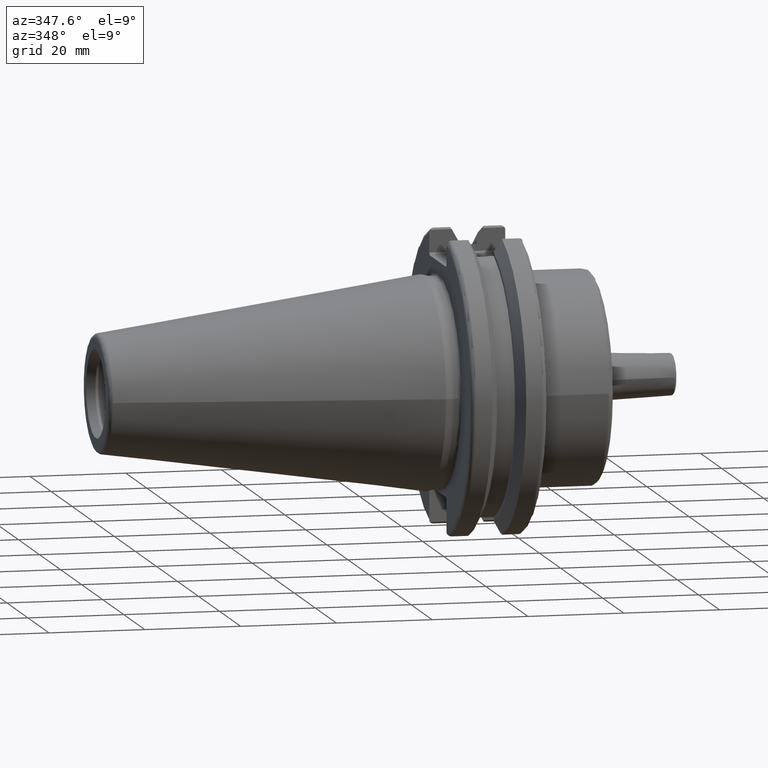
[diagram: clean part render]
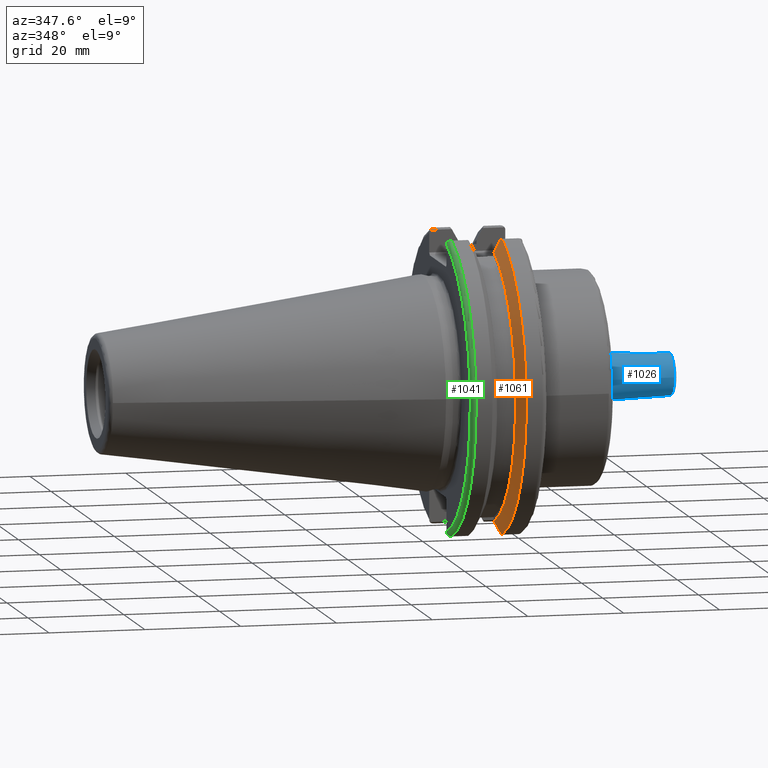
[diagram: same view with three faces highlighted in distinct colors, each labeled with its STEP entity id]
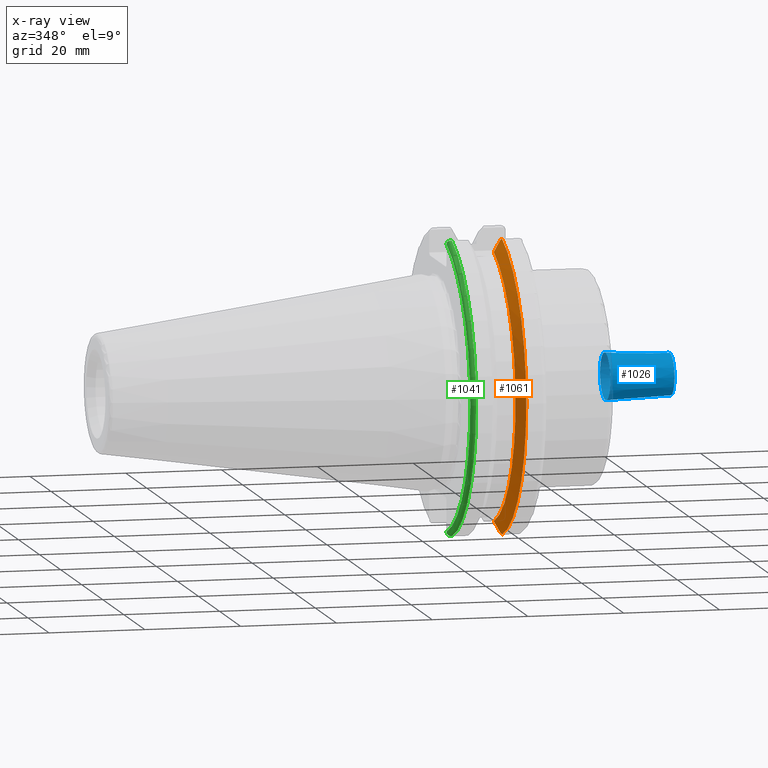
[diagram: x-ray of the same camera — body ghosted, the three highlighted faces saturated]
A machine part, auxiliary view with three faces highlighted in distinct colors.
The next image is the same camera in x-ray (body ghosted, the three faces saturated) — at least one of them is partly hidden behind the body in this view.
Their STEP definitions:

[orange] entity #1061 — the highlighted conical surface has half-angle 60 deg.
#19=(
BOUNDED_CURVE()
B_SPLINE_CURVE(2,(#1778,#1779,#1780),.UNSPECIFIED.,.F.,.F.)
B_SPLINE_CURVE_WITH_KNOTS((3,3),(0.0550586467388173,0.33160778953585),
 .UNSPECIFIED.)
CURVE()
GEOMETRIC_REPRESENTATION_ITEM()
RATIONAL_B_SPLINE_CURVE((1.00031614444917,1.00095203903631,1.))
REPRESENTATION_ITEM('')
);
#20=(
BOUNDED_CURVE()
B_SPLINE_CURVE(2,(#1786,#1787,#1788),.UNSPECIFIED.,.F.,.F.)
B_SPLINE_CURVE_WITH_KNOTS((3,3),(0.,0.276549142796619),.UNSPECIFIED.)
CURVE()
GEOMETRIC_REPRESENTATION_ITEM()
RATIONAL_B_SPLINE_CURVE((1.,1.00095203903827,1.00031614444983))
REPRESENTATION_ITEM('')
);
#27=(
BOUNDED_CURVE()
B_SPLINE_CURVE(2,(#1921,#1922,#1923),.UNSPECIFIED.,.F.,.F.)
B_SPLINE_CURVE_WITH_KNOTS((3,3),(0.,0.0639048713676077),.UNSPECIFIED.)
CURVE()
GEOMETRIC_REPRESENTATION_ITEM()
RATIONAL_B_SPLINE_CURVE((1.,1.00028444218288,1.00047644010581))
REPRESENTATION_ITEM('')
);
#28=(
BOUNDED_CURVE()
B_SPLINE_CURVE(2,(#1937,#1938,#1939),.UNSPECIFIED.,.F.,.F.)
B_SPLINE_CURVE_WITH_KNOTS((3,3),(0.32935353363123,0.393258405001023),
 .UNSPECIFIED.)
CURVE()
GEOMETRIC_REPRESENTATION_ITEM()
RATIONAL_B_SPLINE_CURVE((1.00047644010596,1.00028444218297,1.))
REPRESENTATION_ITEM('')
);
#35=CONICAL_SURFACE('',#1188,30.3546886482472,1.0471975511966);
#269=FACE_OUTER_BOUND('',#333,.T.);
#333=EDGE_LOOP('',(#927,#928,#929,#930,#931,#932));
#412=CIRCLE('',#1182,31.75);
#415=CIRCLE('',#1189,28.9593772964944);
#495=VERTEX_POINT('',#1775);
#496=VERTEX_POINT('',#1777);
#497=VERTEX_POINT('',#1783);
#498=VERTEX_POINT('',#1785);
#523=VERTEX_POINT('',#1919);
#524=VERTEX_POINT('',#1925);
#619=EDGE_CURVE('',#496,#495,#19,.T.);
#622=EDGE_CURVE('',#498,#497,#20,.T.);
#664=EDGE_CURVE('',#523,#497,#27,.T.);
#666=EDGE_CURVE('',#524,#523,#412,.T.);
#671=EDGE_CURVE('',#496,#524,#28,.T.);
#672=EDGE_CURVE('',#495,#498,#415,.T.);
#927=ORIENTED_EDGE('',*,*,#664,.F.);
#928=ORIENTED_EDGE('',*,*,#666,.F.);
#929=ORIENTED_EDGE('',*,*,#671,.F.);
#930=ORIENTED_EDGE('',*,*,#619,.T.);
#931=ORIENTED_EDGE('',*,*,#672,.T.);
#932=ORIENTED_EDGE('',*,*,#622,.T.);
#1061=ADVANCED_FACE('',(#269),#35,.T.);
#1182=AXIS2_PLACEMENT_3D('',#1927,#1442,#1443);
#1188=AXIS2_PLACEMENT_3D('',#1940,#1456,#1457);
#1189=AXIS2_PLACEMENT_3D('',#1941,#1458,#1459);
#1442=DIRECTION('center_axis',(1.,0.,0.));
#1443=DIRECTION('ref_axis',(0.,0.,-1.));
#1456=DIRECTION('center_axis',(1.,0.,0.));
#1457=DIRECTION('ref_axis',(0.,-1.,-1.22464679914735E-16));
#1458=DIRECTION('center_axis',(1.,0.,0.));
#1459=DIRECTION('ref_axis',(0.,0.,-1.));
#1775=CARTESIAN_POINT('',(13.042,-8.19,27.7771386827498));
#1777=CARTESIAN_POINT('',(14.3744146964874,-8.19,30.1755016258903));
#1778=CARTESIAN_POINT('Ctrl Pts',(14.3744146964874,-8.19,30.1755016258903));
#1779=CARTESIAN_POINT('Ctrl Pts',(13.6806364384668,-8.19,28.9303689539537));
#1780=CARTESIAN_POINT('Ctrl Pts',(13.042,-8.19,27.7771386827498));
#1783=CARTESIAN_POINT('',(14.3744146964874,-8.19,-30.1755016258903));
#1785=CARTESIAN_POINT('',(13.042,-8.19,-27.7771386827498));
#1786=CARTESIAN_POINT('Ctrl Pts',(13.042,-8.19,-27.7771386827498));
#1787=CARTESIAN_POINT('Ctrl Pts',(13.6806364384734,-8.19,-28.9303689539657));
#1788=CARTESIAN_POINT('Ctrl Pts',(14.3744146964874,-8.19,-30.1755016258903));
#1919=CARTESIAN_POINT('',(14.6531667690756,-8.67204822802685,-30.5427254764662));
#1921=CARTESIAN_POINT('Ctrl Pts',(14.6531667690756,-8.67204822802687,-30.5427254764662));
#1922=CARTESIAN_POINT('Ctrl Pts',(14.5121085187837,-8.42917748262646,-30.357706789263));
#1923=CARTESIAN_POINT('Ctrl Pts',(14.3744146964874,-8.19,-30.1755016258903));
#1925=CARTESIAN_POINT('',(14.6531667690756,-8.67204822802685,30.5427254764662));
#1927=CARTESIAN_POINT('Origin',(14.6531667690756,0.,0.));
#1937=CARTESIAN_POINT('Ctrl Pts',(14.3744146964874,-8.19,30.1755016258903));
#1938=CARTESIAN_POINT('Ctrl Pts',(14.5121085187884,-8.42917748263461,30.3577067892692));
#1939=CARTESIAN_POINT('Ctrl Pts',(14.6531667690756,-8.67204822802686,30.5427254764662));
#1940=CARTESIAN_POINT('Origin',(13.8475833845378,0.,0.));
#1941=CARTESIAN_POINT('Origin',(13.042,0.,0.));

[blue] entity #1026 — the highlighted conical surface has half-angle 2.207 deg.
#32=CONICAL_SURFACE('',#1124,4.61645022377,0.0385259092163323);
#78=LINE('',#1577,#148);
#148=VECTOR('',#1270,4.61645022377);
#234=FACE_OUTER_BOUND('',#296,.T.);
#296=EDGE_LOOP('',(#725,#726,#727,#728,#729));
#385=CIRCLE('',#1123,4.877);
#386=CIRCLE('',#1125,4.35590044754001);
#387=CIRCLE('',#1126,4.35590044754001);
#439=VERTEX_POINT('',#1570);
#440=VERTEX_POINT('',#1574);
#441=VERTEX_POINT('',#1575);
#549=EDGE_CURVE('',#439,#439,#385,.T.);
#551=EDGE_CURVE('',#440,#441,#386,.T.);
#552=EDGE_CURVE('',#440,#439,#78,.T.);
#553=EDGE_CURVE('',#441,#440,#387,.T.);
#725=ORIENTED_EDGE('',*,*,#551,.F.);
#726=ORIENTED_EDGE('',*,*,#552,.T.);
#727=ORIENTED_EDGE('',*,*,#549,.T.);
#728=ORIENTED_EDGE('',*,*,#552,.F.);
#729=ORIENTED_EDGE('',*,*,#553,.F.);
#1026=ADVANCED_FACE('',(#234),#32,.T.);
#1123=AXIS2_PLACEMENT_3D('',#1571,#1263,#1264);
#1124=AXIS2_PLACEMENT_3D('',#1573,#1266,#1267);
#1125=AXIS2_PLACEMENT_3D('',#1576,#1268,#1269);
#1126=AXIS2_PLACEMENT_3D('',#1578,#1271,#1272);
#1263=DIRECTION('center_axis',(1.,0.,0.));
#1264=DIRECTION('ref_axis',(0.,0.,-1.));
#1266=DIRECTION('center_axis',(-1.,0.,0.));
#1267=DIRECTION('ref_axis',(0.,1.,0.));
#1268=DIRECTION('center_axis',(1.,0.,0.));
#1269=DIRECTION('ref_axis',(0.,0.,-1.));
#1270=DIRECTION('',(-0.999257968946038,-0.0385163796045143,-4.71689609974128E-18));
#1271=DIRECTION('center_axis',(1.,0.,0.));
#1272=DIRECTION('ref_axis',(0.,0.,-1.));
#1570=CARTESIAN_POINT('',(38.1,-4.877,-5.97260243944164E-16));
#1571=CARTESIAN_POINT('Origin',(38.1,0.,0.));
#1573=CARTESIAN_POINT('Origin',(44.8596290949011,0.,0.));
#1574=CARTESIAN_POINT('',(51.6192581898023,-4.35590044754001,-5.33443954048439E-16));
#1575=CARTESIAN_POINT('',(51.6192581898023,-5.33443954048439E-16,4.35590044754001));
#1576=CARTESIAN_POINT('Origin',(51.6192581898023,0.,0.));
#1577=CARTESIAN_POINT('',(44.8596290949011,-4.61645022377,-5.65352098996302E-16));
#1578=CARTESIAN_POINT('Origin',(51.6192581898023,0.,0.));

[green] entity #1041 — the highlighted toroidal blend (fillet) surface has major radius 30.75 mm and minor (blend) radius 1 mm.
#249=FACE_OUTER_BOUND('',#312,.T.);
#312=EDGE_LOOP('',(#832,#833,#834,#835,#836,#837));
#365=B_SPLINE_CURVE_WITH_KNOTS('',3,(#1759,#1760,#1761,#1762,#1763,#1764),
 .UNSPECIFIED.,.F.,.F.,(4,2,4),(0.0977210450333167,0.111963554372601,0.150804064902975),
 .UNSPECIFIED.);
#366=B_SPLINE_CURVE_WITH_KNOTS('',3,(#1801,#1802,#1803,#1804,#1805,#1806),
 .UNSPECIFIED.,.F.,.F.,(4,2,4),(0.452741154494498,0.491581665024872,0.505824174364157),
 .UNSPECIFIED.);
#367=B_SPLINE_CURVE_WITH_KNOTS('',3,(#1810,#1811,#1812,#1813,#1814,#1815,
#1816,#1817),.UNSPECIFIED.,.F.,.F.,(4,2,2,4),(-0.104180282751877,-0.0729784742461442,
-0.0343524753874977,0.),.UNSPECIFIED.);
#368=B_SPLINE_CURVE_WITH_KNOTS('',3,(#1820,#1821,#1822,#1823,#1824,#1825,
#1826,#1827),.UNSPECIFIED.,.F.,.F.,(4,2,2,4),(0.,0.0343524753874981,0.0729784742461436,
0.104180282751876),.UNSPECIFIED.);
#396=CIRCLE('',#1141,30.75);
#403=CIRCLE('',#1157,31.75);
#449=VERTEX_POINT('',#1602);
#450=VERTEX_POINT('',#1603);
#490=VERTEX_POINT('',#1758);
#503=VERTEX_POINT('',#1799);
#504=VERTEX_POINT('',#1809);
#505=VERTEX_POINT('',#1818);
#564=EDGE_CURVE('',#449,#450,#396,.T.);
#613=EDGE_CURVE('',#490,#449,#365,.T.);
#628=EDGE_CURVE('',#450,#503,#366,.T.);
#630=EDGE_CURVE('',#503,#504,#367,.T.);
#631=EDGE_CURVE('',#504,#505,#403,.T.);
#632=EDGE_CURVE('',#505,#490,#368,.T.);
#832=ORIENTED_EDGE('',*,*,#630,.T.);
#833=ORIENTED_EDGE('',*,*,#631,.T.);
#834=ORIENTED_EDGE('',*,*,#632,.T.);
#835=ORIENTED_EDGE('',*,*,#613,.T.);
#836=ORIENTED_EDGE('',*,*,#564,.T.);
#837=ORIENTED_EDGE('',*,*,#628,.T.);
#1016=TOROIDAL_SURFACE('',#1156,30.75,1.);
#1041=ADVANCED_FACE('',(#249),#1016,.T.);
#1141=AXIS2_PLACEMENT_3D('',#1604,#1303,#1304);
#1156=AXIS2_PLACEMENT_3D('',#1808,#1374,#1375);
#1157=AXIS2_PLACEMENT_3D('',#1819,#1376,#1377);
#1303=DIRECTION('center_axis',(1.,0.,0.));
#1304=DIRECTION('ref_axis',(0.,-1.,1.60812264967664E-16));
#1374=DIRECTION('center_axis',(1.,0.,0.));
#1375=DIRECTION('ref_axis',(0.,0.,-1.));
#1376=DIRECTION('center_axis',(-1.,0.,0.));
#1377=DIRECTION('ref_axis',(0.,-1.,1.60812264967664E-16));
#1602=CARTESIAN_POINT('',(3.175,-8.18999999999999,29.6392712461019));
#1603=CARTESIAN_POINT('',(3.175,-8.19,-29.6392712461019));
#1604=CARTESIAN_POINT('Origin',(3.175,0.,0.));
#1758=CARTESIAN_POINT('',(3.31912772509028,-8.19,30.1755016258903));
#1759=CARTESIAN_POINT('Ctrl Pts',(3.31912772509028,-8.19,30.1755016258903));
#1760=CARTESIAN_POINT('Ctrl Pts',(3.29318362718666,-8.19,30.131014531546));
#1761=CARTESIAN_POINT('Ctrl Pts',(3.27103565282437,-8.19,30.0852355256475));
#1762=CARTESIAN_POINT('Ctrl Pts',(3.20451443291695,-8.19,29.9212724384851));
#1763=CARTESIAN_POINT('Ctrl Pts',(3.175,-8.19,29.7687396145364));
#1764=CARTESIAN_POINT('Ctrl Pts',(3.175,-8.19,29.6392712461019));
#1799=CARTESIAN_POINT('',(3.31912772509028,-8.19,-30.1755016258903));
#1801=CARTESIAN_POINT('Ctrl Pts',(3.175,-8.19,-29.6392712461018));
#1802=CARTESIAN_POINT('Ctrl Pts',(3.175,-8.19,-29.7687396145364));
#1803=CARTESIAN_POINT('Ctrl Pts',(3.20451443291695,-8.19,-29.9212724384851));
#1804=CARTESIAN_POINT('Ctrl Pts',(3.27103565282437,-8.19,-30.0852355256475));
#1805=CARTESIAN_POINT('Ctrl Pts',(3.29318362718666,-8.19,-30.131014531546));
#1806=CARTESIAN_POINT('Ctrl Pts',(3.31912772509028,-8.19,-30.1755016258903));
#1808=CARTESIAN_POINT('Origin',(4.175,0.,0.));
#1809=CARTESIAN_POINT('',(4.175,-8.67204822802685,-30.5427254764662));
#1810=CARTESIAN_POINT('Ctrl Pts',(3.31912772509028,-8.19,-30.1755016258903));
#1811=CARTESIAN_POINT('Ctrl Pts',(3.36755369570113,-8.27036828330781,-30.2367261024977));
#1812=CARTESIAN_POINT('Ctrl Pts',(3.43232973376814,-8.34909446036477,-30.2966996242308));
#1813=CARTESIAN_POINT('Ctrl Pts',(3.58532758094931,-8.48862804755884,-30.4029961692546));
#1814=CARTESIAN_POINT('Ctrl Pts',(3.70655857052286,-8.56482138642532,-30.4610401774263));
#1815=CARTESIAN_POINT('Ctrl Pts',(3.92668295662254,-8.6471881193939,-30.5237870709558));
#1816=CARTESIAN_POINT('Ctrl Pts',(4.06049174870834,-8.67204822802686,-30.5427254764662));
#1817=CARTESIAN_POINT('Ctrl Pts',(4.175,-8.67204822802686,-30.5427254764662));
#1818=CARTESIAN_POINT('',(4.175,-8.67204822802685,30.5427254764662));
#1819=CARTESIAN_POINT('Origin',(4.175,0.,0.));
#1820=CARTESIAN_POINT('Ctrl Pts',(4.175,-8.67204822802686,30.5427254764662));
#1821=CARTESIAN_POINT('Ctrl Pts',(4.06049174870834,-8.67204822802686,30.5427254764662));
#1822=CARTESIAN_POINT('Ctrl Pts',(3.92668295662254,-8.64718811939389,30.5237870709558));
#1823=CARTESIAN_POINT('Ctrl Pts',(3.70655857052286,-8.56482138642532,30.4610401774263));
#1824=CARTESIAN_POINT('Ctrl Pts',(3.58532758094931,-8.48862804755884,30.4029961692546));
#1825=CARTESIAN_POINT('Ctrl Pts',(3.43232973376814,-8.34909446036478,30.2966996242308));
#1826=CARTESIAN_POINT('Ctrl Pts',(3.36755369570113,-8.2703682833078,30.2367261024977));
#1827=CARTESIAN_POINT('Ctrl Pts',(3.31912772509028,-8.19,30.1755016258903));